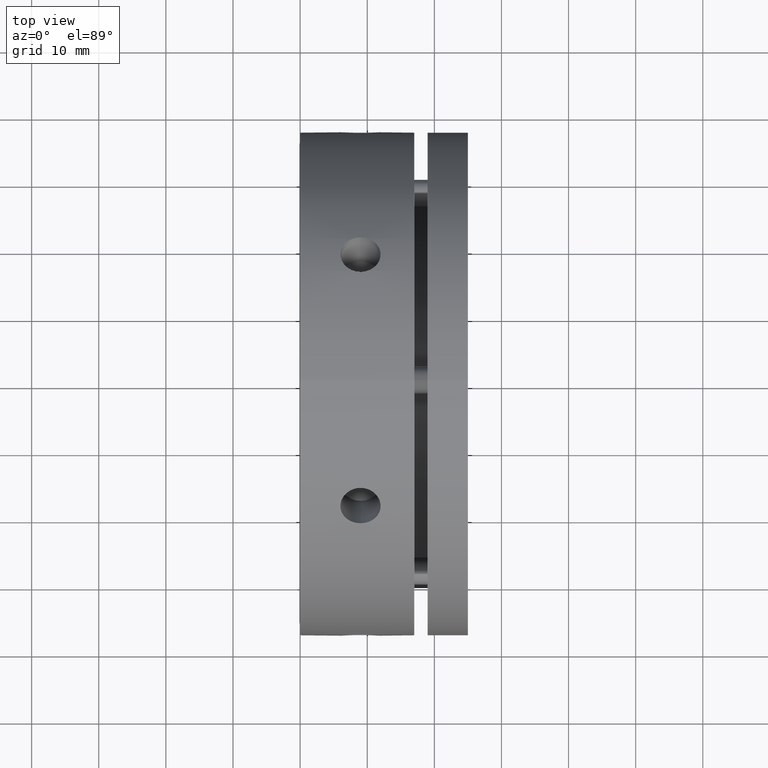
[diagram: clean part render]
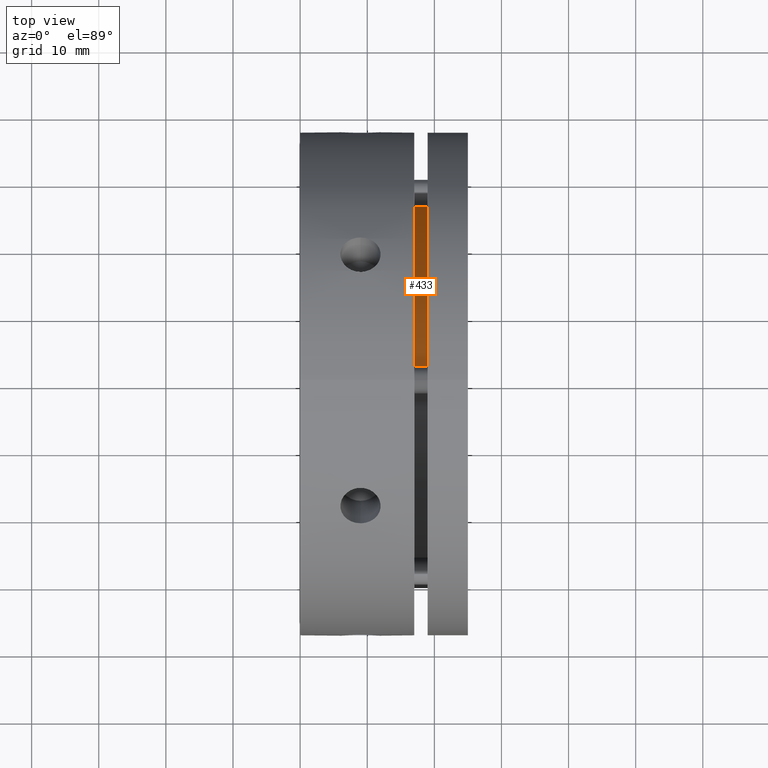
[diagram: same view with one face highlighted and labeled with its STEP entity id]
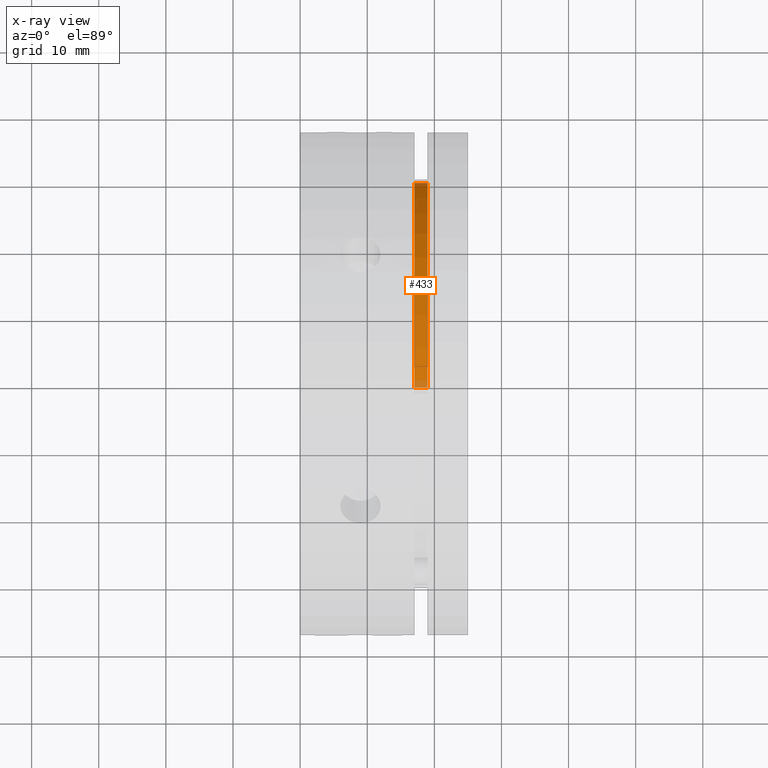
[diagram: x-ray of the same camera — body ghosted, the highlighted face saturated]
A machine part, top view. The second image highlights one B-rep face of the part: STEP entity #433.
The next image is the same camera in x-ray: the body ghosted, the highlighted face saturated — about 5% of this face is hidden behind the body in this view.
In plain terms, the highlighted cylindrical surface (partial cylindrical patch) has radius 30 mm, axis along (-1, 0, 0).
Its self-contained STEP definition (entity closure, byte-faithful):
#136 = ORIENTED_EDGE ( 'NONE', *, *, #4699, .F. ) ;
#277 = ORIENTED_EDGE ( 'NONE', *, *, #4693, .T. ) ;
#302 = ORIENTED_EDGE ( 'NONE', *, *, #4695, .T. ) ;
#312 = ORIENTED_EDGE ( 'NONE', *, *, #4697, .T. ) ;
#433 = ADVANCED_FACE ( 'NONE', ( #3353 ), #3362, .T. ) ;
#563 = AXIS2_PLACEMENT_3D ( 'NONE', #4249, #4247, #4245 ) ;
#1014 = VERTEX_POINT ( 'NONE', #1926 ) ;
#1015 = VERTEX_POINT ( 'NONE', #1927 ) ;
#1018 = VERTEX_POINT ( 'NONE', #1930 ) ;
#1024 = VERTEX_POINT ( 'NONE', #1936 ) ;
#1315 = EDGE_LOOP ( 'NONE', ( #312, #302, #277, #136 ) ) ;
#1926 = CARTESIAN_POINT ( 'NONE',  ( 16.99999999999999600, 0.0000000000000000000, 30.00000000000000700 ) ) ;
#1927 = CARTESIAN_POINT ( 'NONE',  ( 16.99999999999999600, 3.673940397442060000E-015, -30.00000000000000700 ) ) ;
#1930 = CARTESIAN_POINT ( 'NONE',  ( 18.99999999999999600, 0.0000000000000000000, 30.00000000000000700 ) ) ;
#1936 = CARTESIAN_POINT ( 'NONE',  ( 18.99999999999999600, 3.673940397442060000E-015, -30.00000000000000700 ) ) ;
#2735 = CIRCLE ( 'NONE', #4049, 30.00000000000000700 ) ;
#2738 = LINE ( 'NONE', #2843, #2741 ) ;
#2741 = VECTOR ( 'NONE', #2844, 1000.000000000000000 ) ;
#2742 = CIRCLE ( 'NONE', #4051, 30.00000000000000700 ) ;
#2744 = LINE ( 'NONE', #2848, #2746 ) ;
#2746 = VECTOR ( 'NONE', #2849, 1000.000000000000000 ) ;
#2840 = CARTESIAN_POINT ( 'NONE',  ( 16.99999999999999600, 0.0000000000000000000, 0.0000000000000000000 ) ) ;
#2841 = DIRECTION ( 'NONE',  ( 1.000000000000000000, -0.0000000000000000000, -0.0000000000000000000 ) ) ;
#2842 = DIRECTION ( 'NONE',  ( 0.0000000000000000000, 0.0000000000000000000, 1.000000000000000000 ) ) ;
#2843 = CARTESIAN_POINT ( 'NONE',  ( 18.00000000000000400, 3.673940397442060000E-015, -30.00000000000000700 ) ) ;
#2844 = DIRECTION ( 'NONE',  ( -1.000000000000000000, 0.0000000000000000000, 0.0000000000000000000 ) ) ;
#2848 = CARTESIAN_POINT ( 'NONE',  ( 18.00000000000000400, 0.0000000000000000000, 30.00000000000000700 ) ) ;
#2849 = DIRECTION ( 'NONE',  ( -1.000000000000000000, 0.0000000000000000000, 0.0000000000000000000 ) ) ;
#2850 = CARTESIAN_POINT ( 'NONE',  ( 18.99999999999999600, 0.0000000000000000000, 0.0000000000000000000 ) ) ;
#2851 = DIRECTION ( 'NONE',  ( -1.000000000000000000, 0.0000000000000000000, 0.0000000000000000000 ) ) ;
#2852 = DIRECTION ( 'NONE',  ( 0.0000000000000000000, 0.0000000000000000000, 1.000000000000000000 ) ) ;
#3353 = FACE_OUTER_BOUND ( 'NONE', #1315, .T. ) ;
#3362 = CYLINDRICAL_SURFACE ( 'NONE', #563, 30.00000000000000700 ) ;
#4049 = AXIS2_PLACEMENT_3D ( 'NONE', #2840, #2841, #2842 ) ;
#4051 = AXIS2_PLACEMENT_3D ( 'NONE', #2850, #2851, #2852 ) ;
#4245 = DIRECTION ( 'NONE',  ( 0.0000000000000000000, 0.0000000000000000000, 1.000000000000000000 ) ) ;
#4247 = DIRECTION ( 'NONE',  ( -1.000000000000000000, 0.0000000000000000000, 0.0000000000000000000 ) ) ;
#4249 = CARTESIAN_POINT ( 'NONE',  ( 18.00000000000000400, 0.0000000000000000000, 0.0000000000000000000 ) ) ;
#4693 = EDGE_CURVE ( 'NONE', #1015, #1014, #2735, .T. ) ;
#4695 = EDGE_CURVE ( 'NONE', #1024, #1015, #2738, .T. ) ;
#4697 = EDGE_CURVE ( 'NONE', #1018, #1024, #2742, .T. ) ;
#4699 = EDGE_CURVE ( 'NONE', #1018, #1014, #2744, .T. ) ;